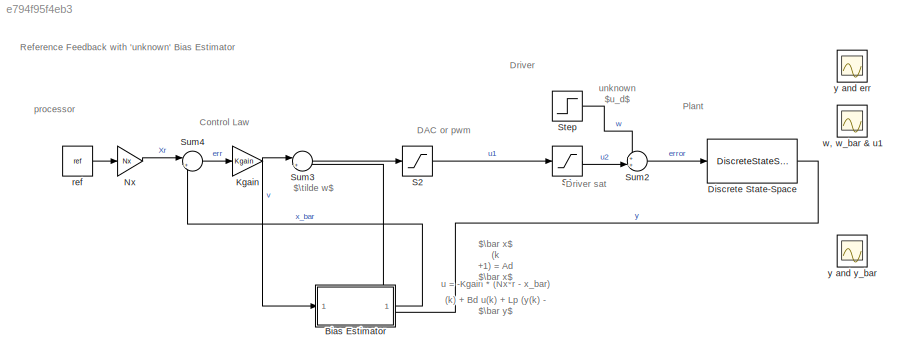
MODEL slx_e794f95f4eb3
KIND model
CONFIG AbsTol = auto
CONFIG EnableMultiTasking = off
CONFIG FixedStep = auto
CONFIG MaxStep = auto
CONFIG MinStep = auto
CONFIG RelTol = 1e-3
CONFIG SampleTimeConstraint = Unconstrained
CONFIG SolverName = VariableStepAuto
CONFIG StartTime = 0.0
CONFIG StopTime = 50
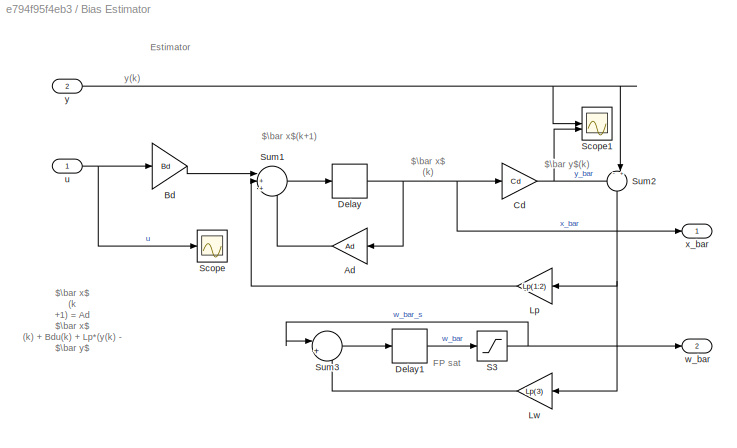
BLOCK [SubSystem] Bias Estimator
  PortSchema = {"entries":[{"content":{"sides":[{"content":{"connectorIds":["In1","Out2"]},"type":"ConnectorPlacement.EquallySpacedRectSide","uuid":"f8343b5f-cced-4eae-9acf-824a3500992e"},{"content":{"connectorIds":["In2","Out1"],"side":"RIGHT"},"type":"ConnectorPlacement.EquallySpacedRectSide","uuid":"3b121aac-19d6-4d13-9538-8a3da9d8cbfd"},{"content":{"side":"TOP"},"type":"ConnectorPlacement.EquallySpacedRectSi...<+235ch>
BLOCK [Gain] Bias Estimator/Ad
  Gain = Ad
  Multiplication = Matrix(K*u) (u vector)
BLOCK [Gain] Bias Estimator/Bd
  Gain = Bd
  Multiplication = Matrix(K*u) (u vector)
BLOCK [Gain] Bias Estimator/Cd
  Gain = Cd
  Multiplication = Matrix(K*u) (u vector)
BLOCK [Delay] Bias Estimator/Delay
  DelayLength = 1
  InputPortMap = u0
  SampleTime = Ts
BLOCK [Delay] Bias Estimator/Delay1
  DelayLength = 1
  InputPortMap = u0
  SampleTime = Ts
BLOCK [Gain] Bias Estimator/Lp
  Gain = Lp(1:2)
  Multiplication = Matrix(K*u) (u vector)
BLOCK [Gain] Bias Estimator/Lw
  Gain = Lp(3)
BLOCK [Saturate] Bias Estimator/S3
  LowerLimit = -SAT3
  UpperLimit = SAT3
BLOCK [Scope] Bias Estimator/Scope
  Floating = off
  NumInputPorts = 1
  ScopeSpecificationString = Simulink.scopes.TimeScopeBlockCfg('CurrentConfiguration', extmgr.ConfigurationSet(extmgr.Configuration('Core','General UI',true),extmgr.Configuration('Core','Source UI',true),extmgr.Configuration('Sources','WiredSimulink',true,'DataLoggingVariableName','ScopeData2'),extmgr.Configuration('Visuals','Time Domain',true,'SerializedDisplays',{struct('MinYLimReal','-4.09279','MaxYLimReal','11.09601','YLa...<+1364ch>
BLOCK [Scope] Bias Estimator/Scope1
  Floating = off
  NumInputPorts = 2
  ScopeSpecificationString = Simulink.scopes.TimeScopeBlockCfg('CurrentConfiguration', extmgr.ConfigurationSet(extmgr.Configuration('Core','General UI',true,'FigureColor',[1 1 1]),extmgr.Configuration('Core','Source UI',true),extmgr.Configuration('Sources','WiredSimulink',true,'DataLoggingVariableName','ScopeData1'),extmgr.Configuration('Visuals','Time Domain',true,'SerializedDisplays',{struct('MinYLimReal','-1.5602','MaxYLim...<+1663ch>
BLOCK [Sum] Bias Estimator/Sum1
  Inputs = |+++
BLOCK [Sum] Bias Estimator/Sum2
  Inputs = -|+
  NameLocation = left
BLOCK [Sum] Bias Estimator/Sum3
  Inputs = |++
BLOCK [Inport] Bias Estimator/u
  IconDisplay = Signal name
BLOCK [Outport] Bias Estimator/w_bar
  IconDisplay = Signal name
  Port = 2
BLOCK [Outport] Bias Estimator/x_bar
  IconDisplay = Signal name
BLOCK [Inport] Bias Estimator/y
  IconDisplay = Signal name
  Port = 2
BLOCK [DiscreteStateSpace] Discrete State-Space
  A = Ad
  B = Bd
  C = Cd
  D = Dd
  SampleTime = Ts
  StateName = plant
BLOCK [Gain] Kgain
  Gain = Kgain
  Multiplication = Matrix(K*u) (u vector)
BLOCK [Gain] Nx
  Gain = Nx
  Multiplication = Matrix(K*u) (u vector)
BLOCK [Saturate] S1
  LowerLimit = -SAT1
  UpperLimit = SAT1
BLOCK [Saturate] S2
  LowerLimit = -SAT2
  UpperLimit = SAT2
BLOCK [Step] Step
  After = 2
  SampleTime = Ts
  Time = 20
BLOCK [Sum] Sum2
  Inputs = ++|
BLOCK [Sum] Sum3
  Inputs = |+-
BLOCK [Sum] Sum4
  Inputs = |+-
BLOCK [Constant] ref
  SampleTime = Ts
  Value = ref
BLOCK [Scope] w, w_bar & u1
  Floating = on
  NumInputPorts = 1
  ScopeSpecificationString = Simulink.scopes.TimeScopeBlockCfg('CurrentConfiguration', extmgr.ConfigurationSet(extmgr.Configuration('Core','General UI',true,'FigureColor',[1 1 1]),extmgr.Configuration('Core','Source UI',true),extmgr.Configuration('Sources','WiredSimulink',true,'DataLoggingVariableName','ScopeData2'),extmgr.Configuration('Visuals','Time Domain',true,'SerializedDisplays',{struct('MinYLimReal','-2.5625','MaxYLim...<+2458ch>
BLOCK [Scope] y and err
  Floating = on
  NumInputPorts = 1
  ScopeSpecificationString = Simulink.scopes.TimeScopeBlockCfg('CurrentConfiguration', extmgr.ConfigurationSet(extmgr.Configuration('Core','General UI',true,'FigureColor',[1 1 1]),extmgr.Configuration('Core','Source UI',true),extmgr.Configuration('Sources','WiredSimulink',true,'DataLoggingVariableName','ScopeData1'),extmgr.Configuration('Visuals','Time Domain',true,'SerializedDisplays',{struct('MinYLimReal','-4.37181','MaxYLi...<+1753ch>
BLOCK [Scope] y and y_bar
  Floating = on
  NumInputPorts = 1
  ScopeSpecificationString = Simulink.scopes.TimeScopeBlockCfg('CurrentConfiguration', extmgr.ConfigurationSet(extmgr.Configuration('Core','General UI',true,'FigureColor',[1 1 1]),extmgr.Configuration('Core','Source UI',true),extmgr.Configuration('Sources','WiredSimulink',true,'DataLoggingVariableName','ScopeData3'),extmgr.Configuration('Visuals','Time Domain',true,'SerializedDisplays',{struct('MinYLimReal','-1.44332','MaxYLi...<+1671ch>
ANNOTATION (root): Control Law
ANNOTATION (root): DAC or pwm
ANNOTATION (root): Reference Feedback with 'unknown' Bias Estimator
ANNOTATION (root): Driver sat
ANNOTATION (root): $\bar x$ (k +1) = Ad $\bar x$ (k) + Bd u(k) + Lp (y(k) - $\bar y$ (k)) $\tilde w$ (k+1) = $\tilde w$ (k) + Lw (y(k) - $\bar y$ (k))
ANNOTATION (root): $\tilde w$
ANNOTATION (root): unknown $u_d$
ANNOTATION (root): Driver
ANNOTATION (root): Plant
ANNOTATION (root): processor
ANNOTATION (root): u = -Kgain * (Nx*r - x_bar)
ANNOTATION Bias Estimator: FP sat
ANNOTATION Bias Estimator: Estimator
ANNOTATION Bias Estimator: $\bar x$ (k +1) = Ad $\bar x$ (k) + Bdu(k) + Lp*(y(k) - $\bar y$ (k)) $\tilde w$ (k+1) = $\tilde w$ (k) + Lw* (y(k) - $\bar y$ (k))
ANNOTATION Bias Estimator: $\bar x$ (k)
ANNOTATION Bias Estimator: $\bar x$ (k+1)
ANNOTATION Bias Estimator: $\bar y$ (k)
ANNOTATION Bias Estimator: y(k)
LINE Bias Estimator/Ad:1 -> Bias Estimator/Sum1:3
LINE Bias Estimator/Bd:1 -> Bias Estimator/Sum1:1
NET Bias Estimator/Cd:1 -> Bias Estimator/Scope1:2, Bias Estimator/Sum2:1
LINE Bias Estimator/Delay1:1 -> Bias Estimator/S3:1
NET Bias Estimator/Delay:1 -> Bias Estimator/Ad:1, Bias Estimator/Cd:1, Bias Estimator/x_bar:1
LINE Bias Estimator/Lp:1 -> Bias Estimator/Sum1:2
LINE Bias Estimator/Lw:1 -> Bias Estimator/Sum3:2
NET Bias Estimator/S3:1 -> Bias Estimator/Sum3:1, Bias Estimator/w_bar:1
LINE Bias Estimator/Sum1:1 -> Bias Estimator/Delay:1
NET Bias Estimator/Sum2:1 -> Bias Estimator/Lp:1, Bias Estimator/Lw:1
LINE Bias Estimator/Sum3:1 -> Bias Estimator/Delay1:1
NET Bias Estimator/u:1 -> Bias Estimator/Bd:1, Bias Estimator/Scope:1
NET Bias Estimator/y:1 -> Bias Estimator/Scope1:1, Bias Estimator/Sum2:2
LINE Bias Estimator:1 -> Sum4:2
LINE Bias Estimator:2 -> Sum3:2
LINE Discrete State-Space:1 -> Bias Estimator:2
NET Kgain:1 -> Bias Estimator:1, Sum3:1
LINE Nx:1 -> Sum4:1
LINE S1:1 -> Sum2:2
LINE S2:1 -> S1:1
LINE Step:1 -> Sum2:1
LINE Sum2:1 -> Discrete State-Space:1
LINE Sum3:1 -> S2:1
LINE Sum4:1 -> Kgain:1
LINE ref:1 -> Nx:1
note: NET lines group one-source signal fan-out (src -> all destinations, sorted); 1:1 wires keep LINE
